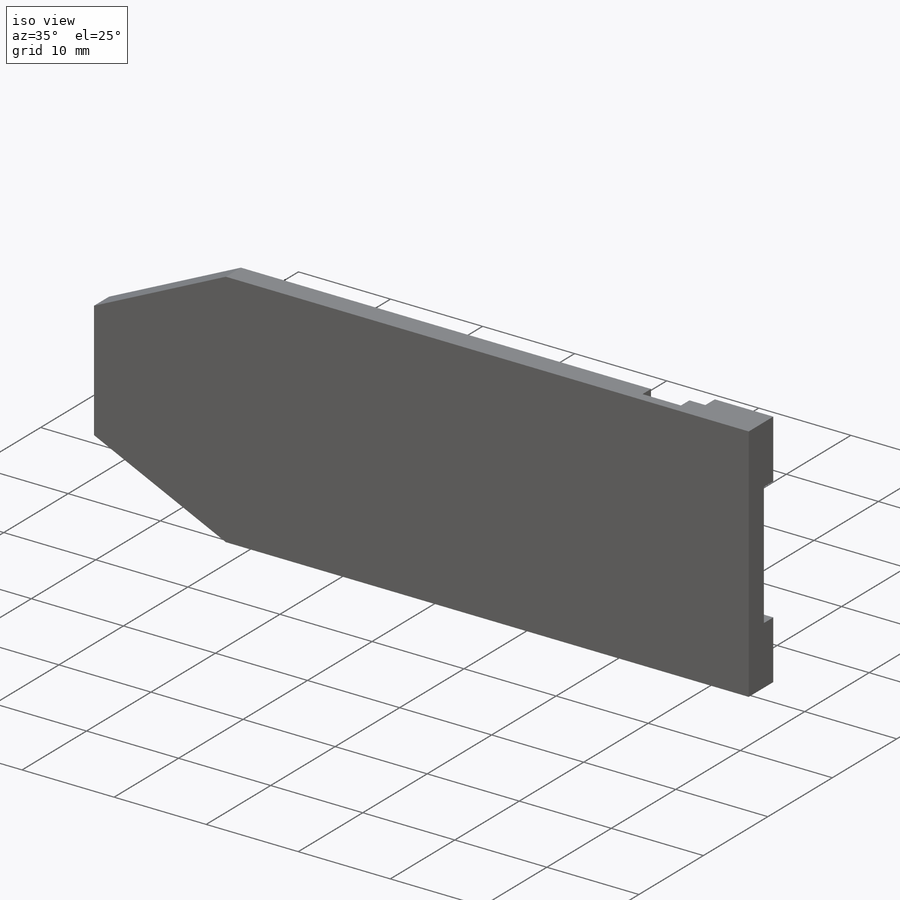
[diagram: iso view]
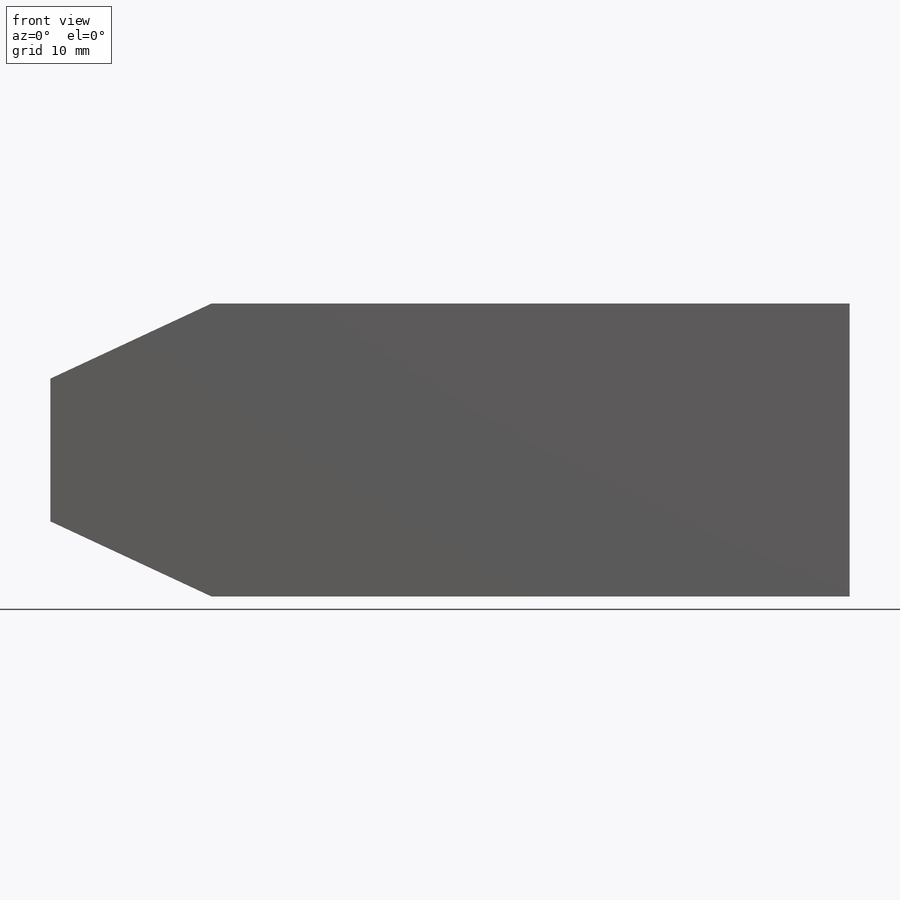
[diagram: front view]
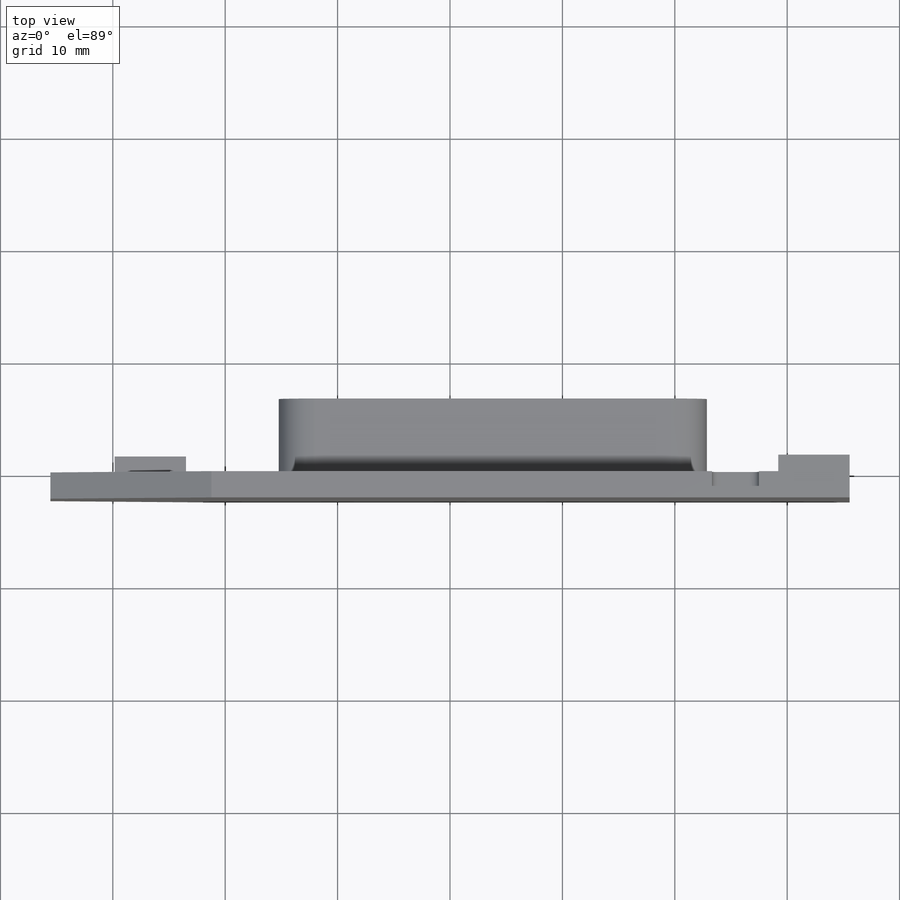
[diagram: top view]
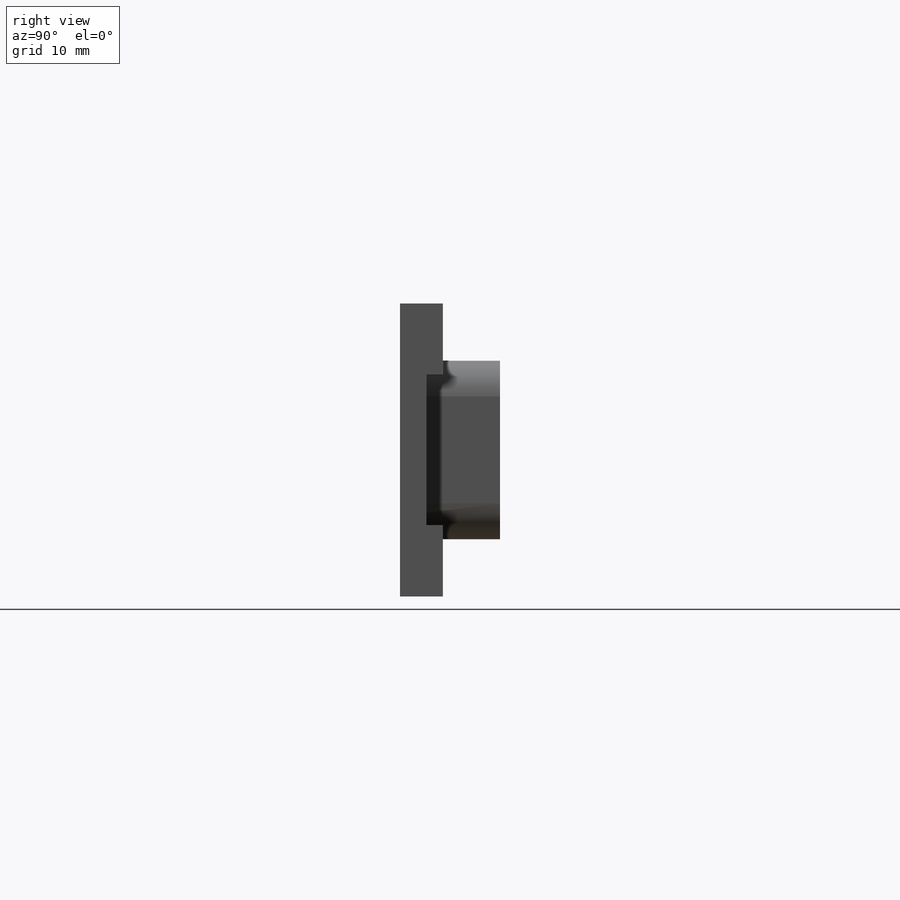
[diagram: right view]
SOLIDWORKS PART (.sldprt)
format: sldprt  version: not decoded by parser v0  size: 428,544 bytes
history: native  units: mm
features: sketch x4, extrude x3, fillet x2, material x1, cut_extrude x1 (+15 scaffold rows collapsed)
feature tree (26):
  scaffold x15  (default folders/planes/origin — collapsed)
  material  "Material <not specified>"
  sketch  "Sketch1"  dims[c1.D1=~25.223611mm c2.D1=90.0deg c3.D1=~25.223611mm c4.D1=90.0deg c5.D1=12.7mm c5.D2=26.06mm c5.D3=56.79mm c5.D4=71.12mm]
  extrude  "Extrude1"  Depth=2.34mm
  sketch  "Sketch2"  dims[c1.D3=2.18mm c1.D4=2.18mm c1.D5=2.18mm c1.D1=6.35mm c1.D2=5.72mm c2.D5=3.175mm]
  extrude  "Extrude2"  Depth=1.47mm
  sketch  "Sketch3"  dims[D1=4.57mm D2=4.17mm D3=1.73mm D4=1.73mm D5=4.57mm D6=4.17mm D7=4.17mm D8=4.57mm]
  cut_extrude  "Cut-Extrude1"  Depth=1.32mm
  fillet  "Fillet1"  Radius=0.81mm
  sketch  "Sketch4"  dims[c1.D6=2.74mm c1.D7=2.74mm c1.D8=2.74mm c1.D9=2.74mm c1.D1=12.7mm c1.D2=38.1mm c1.D3=15.88mm c1.D4=6.35mm c1.D5=31.75mm c2.D8=6.35mm c2.D9=6.35mm]
  extrude  "Extrude3"  Depth=6.55mm
  fillet  "Fillet2"  Radius=3.18mm
decode coverage: 10 of 10 modeling features carry decoded parameters
note: ~ marks probable driven/reference dimensions
note: suppression state not decoded; provenance and decode notes live in map.json
